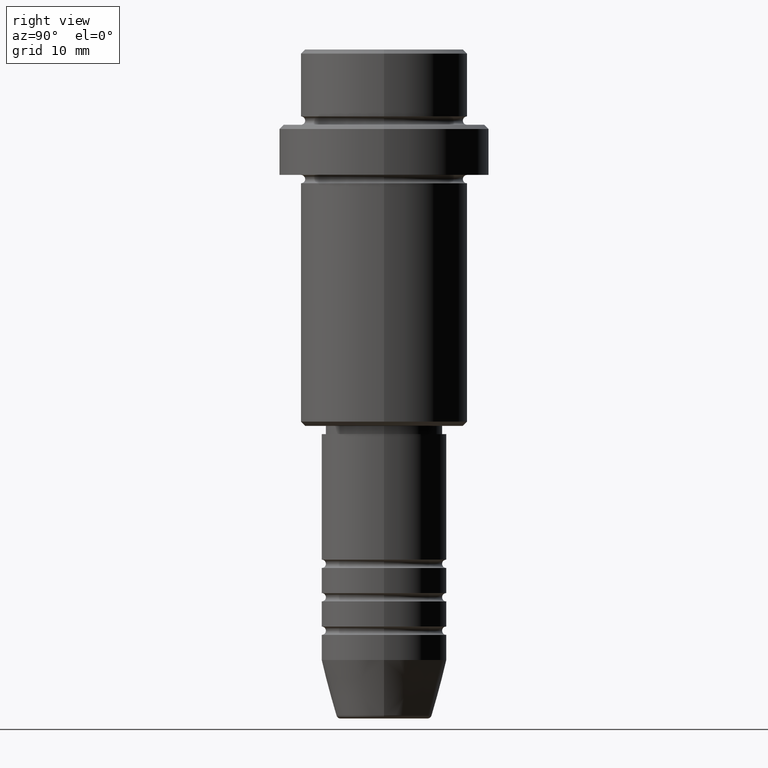
[diagram: clean part render]
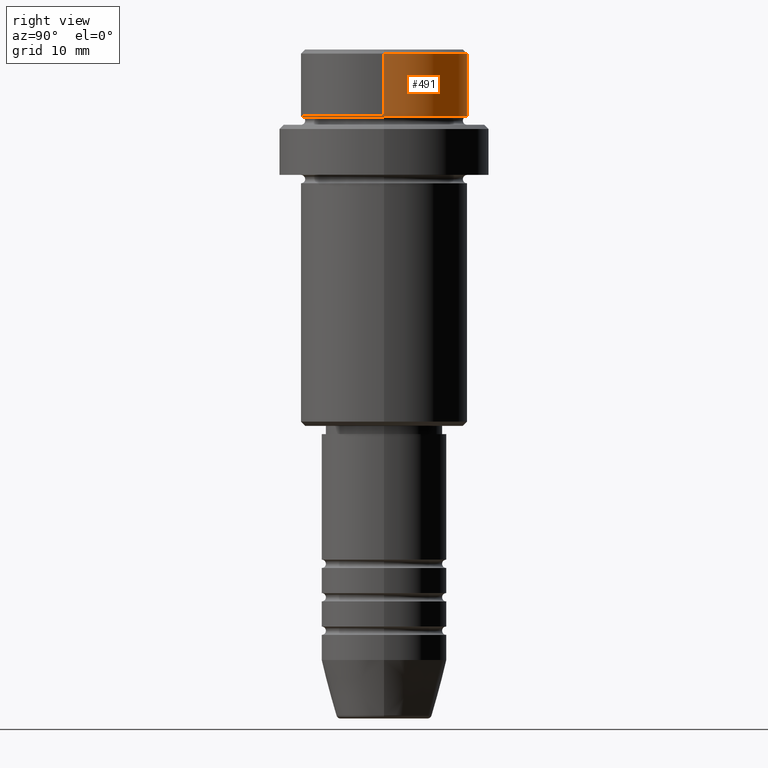
[diagram: same view with one face highlighted and labeled with its STEP entity id]
A machine part, right view. The second image highlights one B-rep face of the part: STEP entity #491.
In plain terms, the highlighted cylindrical surface (partial cylindrical patch) has radius 10 mm, axis along (-0, -0, 1).
Its self-contained STEP definition (entity closure, byte-faithful):
#41 = EDGE_LOOP ( 'NONE', ( #68, #921, #834, #945 ) ) ;
#52 = CIRCLE ( 'NONE', #895, 9.999999999999998224 ) ;
#68 = ORIENTED_EDGE ( 'NONE', *, *, #107, .T. ) ;
#74 = CARTESIAN_POINT ( 'NONE',  ( -9.999999999999998224, 1.224646799147353059E-15, -0.4999999999999970024 ) ) ;
#107 = EDGE_CURVE ( 'NONE', #146, #202, #479, .T. ) ;
#146 = VERTEX_POINT ( 'NONE', #946 ) ;
#172 = DIRECTION ( 'NONE',  ( -0.000000000000000000, -0.000000000000000000, 1.000000000000000000 ) ) ;
#202 = VERTEX_POINT ( 'NONE', #965 ) ;
#269 = CARTESIAN_POINT ( 'NONE',  ( -9.999999999999998224, 1.224646799147353059E-15, 0.000000000000000000 ) ) ;
#276 = CARTESIAN_POINT ( 'NONE',  ( 9.999999999999998224, 0.000000000000000000, 0.000000000000000000 ) ) ;
#277 = LINE ( 'NONE', #269, #545 ) ;
#412 = DIRECTION ( 'NONE',  ( 1.000000000000000000, 0.000000000000000000, 0.000000000000000000 ) ) ;
#472 = EDGE_CURVE ( 'NONE', #146, #1364, #607, .T. ) ;
#479 = CIRCLE ( 'NONE', #1069, 9.999999999999998224 ) ;
#491 = ADVANCED_FACE ( 'NONE', ( #719 ), #515, .T. ) ;
#495 = DIRECTION ( 'NONE',  ( -0.000000000000000000, -0.000000000000000000, 1.000000000000000000 ) ) ;
#496 = DIRECTION ( 'NONE',  ( 0.000000000000000000, 0.000000000000000000, -1.000000000000000000 ) ) ;
#515 = CYLINDRICAL_SURFACE ( 'NONE', #826, 9.999999999999998224 ) ;
#542 = CARTESIAN_POINT ( 'NONE',  ( 9.999999999999998224, 0.000000000000000000, -0.4999999999999970024 ) ) ;
#545 = VECTOR ( 'NONE', #172, 1000.000000000000000 ) ;
#601 = CARTESIAN_POINT ( 'NONE',  ( 0.000000000000000000, 0.000000000000000000, -7.999999999999998224 ) ) ;
#603 = DIRECTION ( 'NONE',  ( 1.000000000000000000, 0.000000000000000000, 0.000000000000000000 ) ) ;
#607 = LINE ( 'NONE', #276, #1415 ) ;
#710 = DIRECTION ( 'NONE',  ( -0.000000000000000000, -0.000000000000000000, 1.000000000000000000 ) ) ;
#713 = CARTESIAN_POINT ( 'NONE',  ( 0.000000000000000000, 0.000000000000000000, -0.4999999999999970024 ) ) ;
#719 = FACE_OUTER_BOUND ( 'NONE', #41, .T. ) ;
#808 = EDGE_CURVE ( 'NONE', #202, #862, #277, .T. ) ;
#826 = AXIS2_PLACEMENT_3D ( 'NONE', #1387, #495, #412 ) ;
#834 = ORIENTED_EDGE ( 'NONE', *, *, #850, .T. ) ;
#850 = EDGE_CURVE ( 'NONE', #862, #1364, #52, .T. ) ;
#862 = VERTEX_POINT ( 'NONE', #74 ) ;
#895 = AXIS2_PLACEMENT_3D ( 'NONE', #713, #496, #603 ) ;
#921 = ORIENTED_EDGE ( 'NONE', *, *, #808, .T. ) ;
#945 = ORIENTED_EDGE ( 'NONE', *, *, #472, .F. ) ;
#946 = CARTESIAN_POINT ( 'NONE',  ( 9.999999999999998224, 0.000000000000000000, -7.999999999999998224 ) ) ;
#965 = CARTESIAN_POINT ( 'NONE',  ( -9.999999999999998224, 1.224646799147353059E-15, -7.999999999999998224 ) ) ;
#1050 = DIRECTION ( 'NONE',  ( 1.000000000000000000, 0.000000000000000000, 0.000000000000000000 ) ) ;
#1069 = AXIS2_PLACEMENT_3D ( 'NONE', #601, #710, #1050 ) ;
#1175 = DIRECTION ( 'NONE',  ( -0.000000000000000000, -0.000000000000000000, 1.000000000000000000 ) ) ;
#1364 = VERTEX_POINT ( 'NONE', #542 ) ;
#1387 = CARTESIAN_POINT ( 'NONE',  ( 0.000000000000000000, 0.000000000000000000, 0.000000000000000000 ) ) ;
#1415 = VECTOR ( 'NONE', #1175, 1000.000000000000000 ) ;